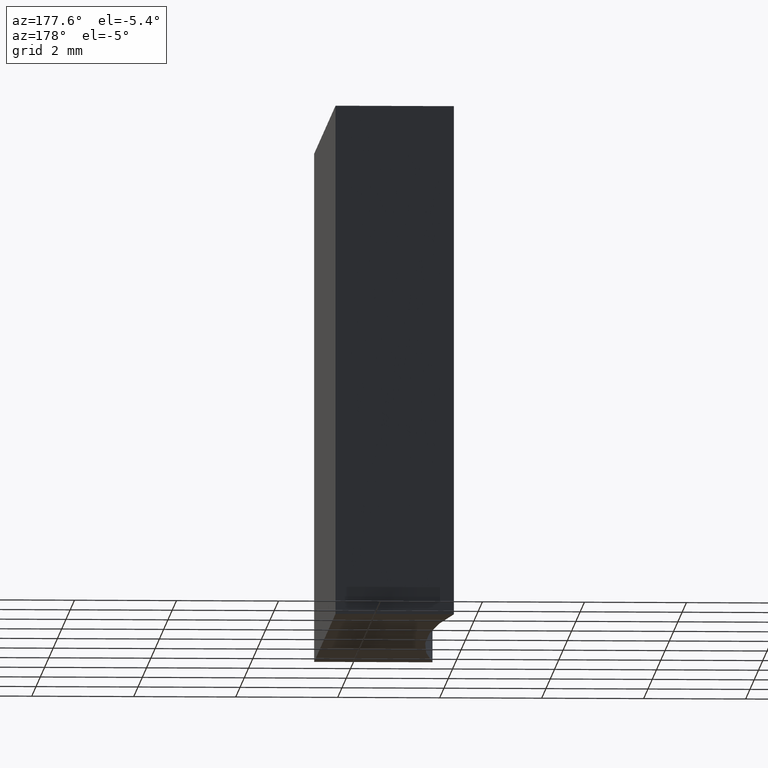
[diagram: clean part render]
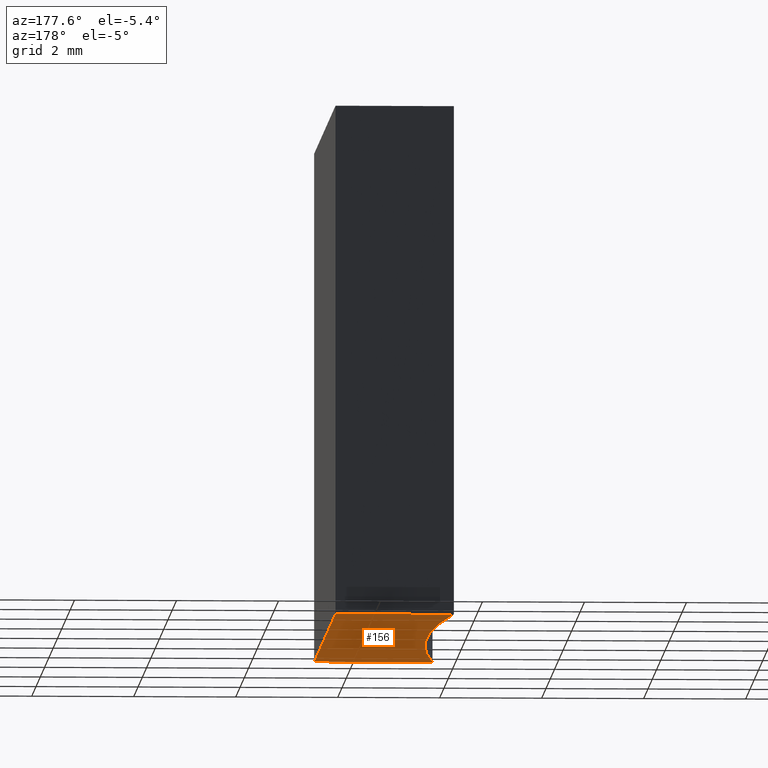
[diagram: same view with one face highlighted and labeled with its STEP entity id]
A machine part, auxiliary view. The second image highlights one B-rep face of the part: STEP entity #156.
In plain terms, the highlighted planar face has unit normal (0, 0, 1).
Its self-contained STEP definition (entity closure, byte-faithful):
#2 = CARTESIAN_POINT ( 'NONE',  ( -26.10075102173796324, -5.895841650131568024, 0.000000000000000000 ) ) ;
#26 = CARTESIAN_POINT ( 'NONE',  ( 12.35556705474980710, -0.8958416501315611402, 0.000000000000000000 ) ) ;
#29 = AXIS2_PLACEMENT_3D ( 'NONE', #2, #80, #149 ) ;
#34 = VECTOR ( 'NONE', #63, 1000.000000000000000 ) ;
#39 = FACE_OUTER_BOUND ( 'NONE', #140, .T. ) ;
#42 = ORIENTED_EDGE ( 'NONE', *, *, #114, .F. ) ;
#51 = VECTOR ( 'NONE', #88, 1000.000000000000000 ) ;
#57 = DIRECTION ( 'NONE',  ( 1.000000000000000000, 0.000000000000000000, 0.000000000000000000 ) ) ;
#58 = DIRECTION ( 'NONE',  ( 1.000000000000000000, 0.000000000000000000, 0.000000000000000000 ) ) ;
#59 = CARTESIAN_POINT ( 'NONE',  ( 14.67556705474980738, -10.89584165013156181, 0.000000000000000000 ) ) ;
#63 = DIRECTION ( 'NONE',  ( -1.734723475976807094E-16, 1.000000000000000000, -0.000000000000000000 ) ) ;
#74 = DIRECTION ( 'NONE',  ( -0.000000000000000000, -0.000000000000000000, -1.000000000000000000 ) ) ;
#75 = EDGE_CURVE ( 'NONE', #79, #180, #89, .T. ) ;
#76 = VERTEX_POINT ( 'NONE', #59 ) ;
#78 = CARTESIAN_POINT ( 'NONE',  ( 12.35556705474980888, -10.89584165013156181, 0.000000000000000000 ) ) ;
#79 = VERTEX_POINT ( 'NONE', #237 ) ;
#80 = DIRECTION ( 'NONE',  ( 0.000000000000000000, 0.000000000000000000, 1.000000000000000000 ) ) ;
#88 = DIRECTION ( 'NONE',  ( -1.000000000000000000, -0.000000000000000000, -0.000000000000000000 ) ) ;
#89 = LINE ( 'NONE', #167, #51 ) ;
#92 = PLANE ( 'NONE',  #29 ) ;
#103 = VERTEX_POINT ( 'NONE', #78 ) ;
#114 = EDGE_CURVE ( 'NONE', #76, #79, #164, .T. ) ;
#126 = VECTOR ( 'NONE', #58, 1000.000000000000000 ) ;
#131 = ORIENTED_EDGE ( 'NONE', *, *, #161, .F. ) ;
#138 = ORIENTED_EDGE ( 'NONE', *, *, #146, .F. ) ;
#140 = EDGE_LOOP ( 'NONE', ( #138, #198, #42, #131 ) ) ;
#146 = EDGE_CURVE ( 'NONE', #180, #103, #225, .T. ) ;
#149 = DIRECTION ( 'NONE',  ( 1.000000000000000000, 0.000000000000000000, -0.000000000000000000 ) ) ;
#156 = ADVANCED_FACE ( 'NONE', ( #39 ), #92, .F. ) ;
#161 = EDGE_CURVE ( 'NONE', #103, #76, #218, .T. ) ;
#164 = LINE ( 'NONE', #182, #34 ) ;
#167 = CARTESIAN_POINT ( 'NONE',  ( 12.35556705474980710, -0.8958416501315611402, 0.000000000000000000 ) ) ;
#180 = VERTEX_POINT ( 'NONE', #26 ) ;
#182 = CARTESIAN_POINT ( 'NONE',  ( 14.67556705474980561, -0.8958416501315611402, 0.000000000000000000 ) ) ;
#198 = ORIENTED_EDGE ( 'NONE', *, *, #75, .F. ) ;
#199 = CARTESIAN_POINT ( 'NONE',  ( 12.35556705474980888, -10.89584165013156181, 0.000000000000000000 ) ) ;
#218 = LINE ( 'NONE', #199, #126 ) ;
#225 = CIRCLE ( 'NONE', #234, 38.78000000000000114 ) ;
#234 = AXIS2_PLACEMENT_3D ( 'NONE', #236, #74, #57 ) ;
#236 = CARTESIAN_POINT ( 'NONE',  ( -26.10075102173796324, -5.895841650131568024, 0.000000000000000000 ) ) ;
#237 = CARTESIAN_POINT ( 'NONE',  ( 14.67556705474980561, -0.8958416501315611402, 0.000000000000000000 ) ) ;